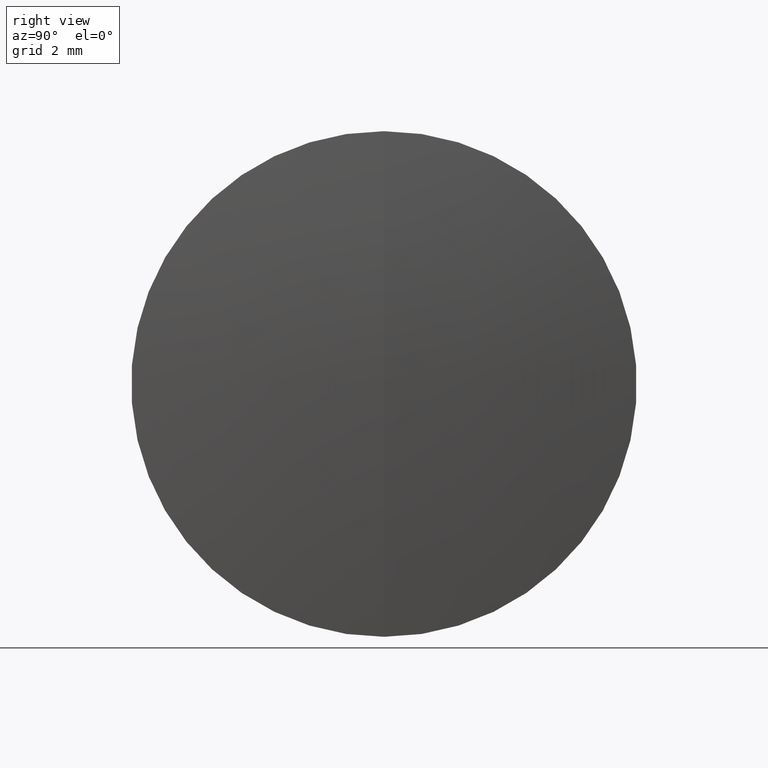
[diagram: clean part render]
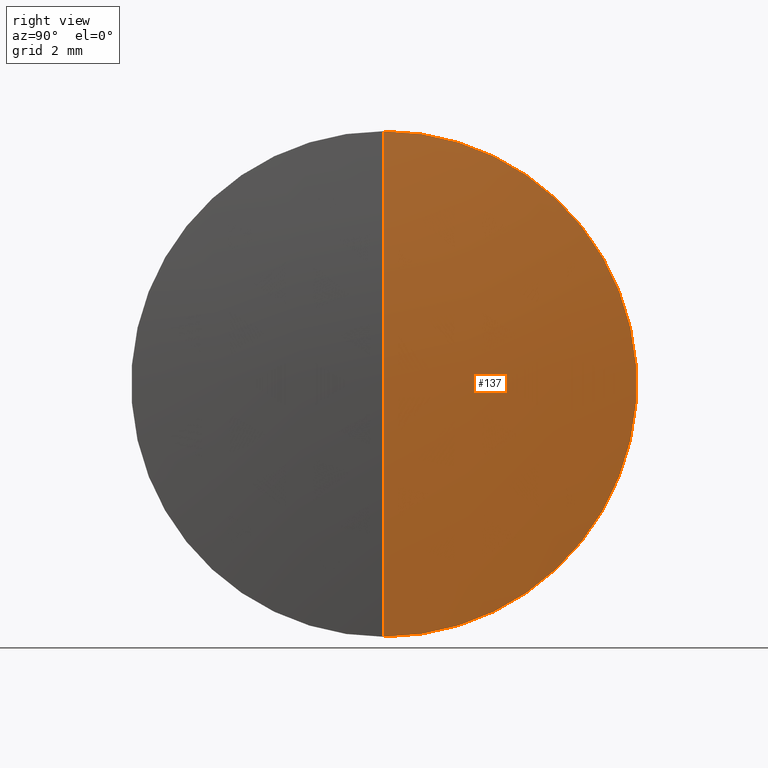
[diagram: same view with one face highlighted and labeled with its STEP entity id]
A machine part, right view. The second image highlights one B-rep face of the part: STEP entity #137.
In plain terms, the highlighted spherical surface has radius 68.975 mm.
Its self-contained STEP definition (entity closure, byte-faithful):
#9 = CARTESIAN_POINT ( 'NONE',  ( -52.15877107057561800, 0.0000000000000000000, 0.0000000000000000000 ) ) ;
#35 = ORIENTED_EDGE ( 'NONE', *, *, #318, .F. ) ;
#41 = EDGE_CURVE ( 'NONE', #347, #315, #341, .T. ) ;
#42 = CARTESIAN_POINT ( 'NONE',  ( -52.15877107057561800, 0.0000000000000000000, 0.0000000000000000000 ) ) ;
#57 = CIRCLE ( 'NONE', #205, 7.499999999999992900 ) ;
#59 = DIRECTION ( 'NONE',  ( -0.0000000000000000000, 1.000000000000000000, 1.224646799147353200E-016 ) ) ;
#60 = ORIENTED_EDGE ( 'NONE', *, *, #41, .T. ) ;
#64 = CARTESIAN_POINT ( 'NONE',  ( 16.40726006000681300, 0.0000000000000000000, 7.499999999999992900 ) ) ;
#65 = VERTEX_POINT ( 'NONE', #64 ) ;
#76 = CARTESIAN_POINT ( 'NONE',  ( 16.40726006000681300, 9.184850993605144000E-016, -7.499999999999992900 ) ) ;
#77 = CARTESIAN_POINT ( 'NONE',  ( 16.81622892942437300, 0.0000000000000000000, 4.223500648559434300E-015 ) ) ;
#80 = EDGE_LOOP ( 'NONE', ( #35, #60, #298 ) ) ;
#84 = CARTESIAN_POINT ( 'NONE',  ( 16.40726006000681300, 0.0000000000000000000, 0.0000000000000000000 ) ) ;
#86 = CARTESIAN_POINT ( 'NONE',  ( -52.15877107057561800, 0.0000000000000000000, 0.0000000000000000000 ) ) ;
#108 = DIRECTION ( 'NONE',  ( 0.0000000000000000000, -1.000000000000000000, 0.0000000000000000000 ) ) ;
#110 = AXIS2_PLACEMENT_3D ( 'NONE', #9, #108, #249 ) ;
#111 = DIRECTION ( 'NONE',  ( 0.0000000000000000000, 0.0000000000000000000, 1.000000000000000000 ) ) ;
#112 = DIRECTION ( 'NONE',  ( 0.0000000000000000000, 0.0000000000000000000, 1.000000000000000000 ) ) ;
#137 = ADVANCED_FACE ( 'NONE', ( #236 ), #301, .T. ) ;
#146 = AXIS2_PLACEMENT_3D ( 'NONE', #42, #237, #111 ) ;
#203 = DIRECTION ( 'NONE',  ( 0.0000000000000000000, -1.224646799147353200E-016, 1.000000000000000000 ) ) ;
#205 = AXIS2_PLACEMENT_3D ( 'NONE', #84, #274, #112 ) ;
#210 = CIRCLE ( 'NONE', #110, 68.97499999999999400 ) ;
#236 = FACE_OUTER_BOUND ( 'NONE', #80, .T. ) ;
#237 = DIRECTION ( 'NONE',  ( 0.0000000000000000000, 1.000000000000000000, 0.0000000000000000000 ) ) ;
#249 = DIRECTION ( 'NONE',  ( 0.0000000000000000000, 0.0000000000000000000, -1.000000000000000000 ) ) ;
#254 = AXIS2_PLACEMENT_3D ( 'NONE', #86, #59, #203 ) ;
#274 = DIRECTION ( 'NONE',  ( -1.000000000000000000, -0.0000000000000000000, -0.0000000000000000000 ) ) ;
#293 = EDGE_CURVE ( 'NONE', #65, #315, #57, .T. ) ;
#298 = ORIENTED_EDGE ( 'NONE', *, *, #293, .F. ) ;
#301 = SPHERICAL_SURFACE ( 'NONE', #146, 68.97499999999999400 ) ;
#315 = VERTEX_POINT ( 'NONE', #76 ) ;
#318 = EDGE_CURVE ( 'NONE', #347, #65, #210, .T. ) ;
#341 = CIRCLE ( 'NONE', #254, 68.97499999999999400 ) ;
#347 = VERTEX_POINT ( 'NONE', #77 ) ;